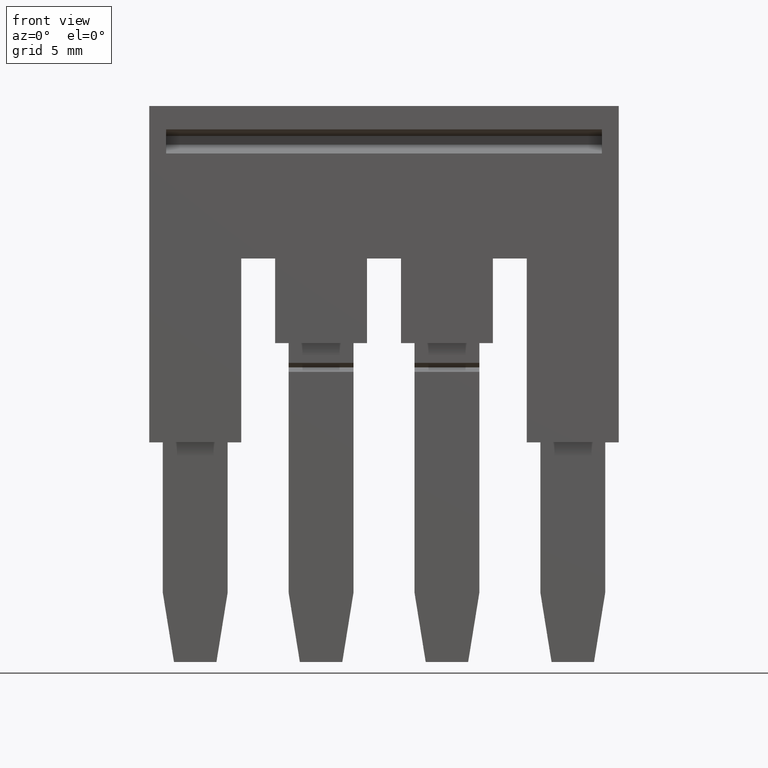
[diagram: clean part render]
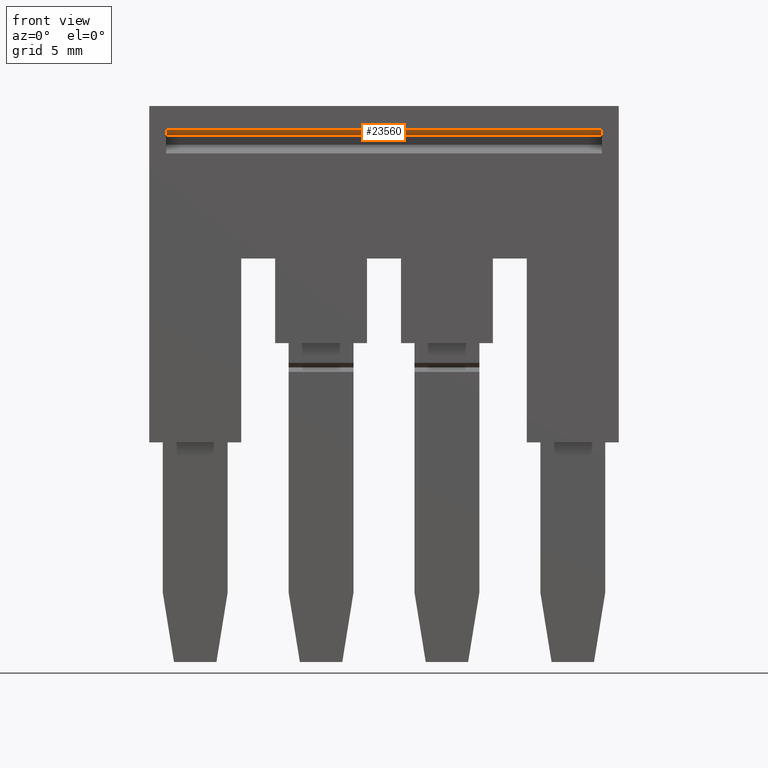
[diagram: same view with one face highlighted and labeled with its STEP entity id]
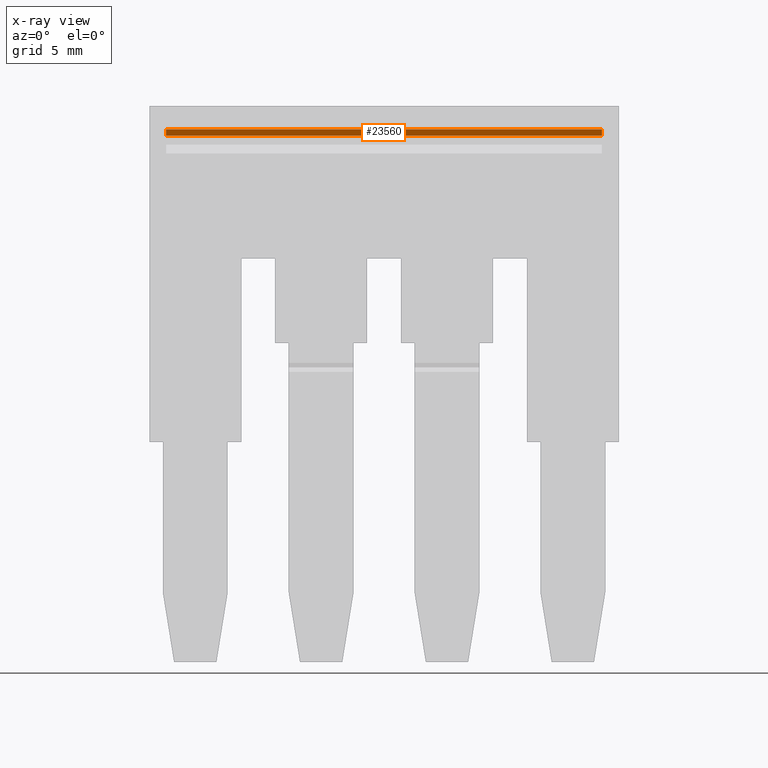
[diagram: x-ray of the same camera — body ghosted, the highlighted face saturated]
A machine part, front view. The second image highlights one B-rep face of the part: STEP entity #23560.
The next image is the same camera in x-ray: the body ghosted, the highlighted face saturated — about 0% of this face is hidden behind the body in this view.
In plain terms, the highlighted planar face has unit normal (0, 0.2588, 0.9659).
Its self-contained STEP definition (entity closure, byte-faithful):
#200=CARTESIAN_POINT('',(5.60716722168537,-10.8410254037807,
39.6599999999988));
#210=VERTEX_POINT('',#200);
#240=CARTESIAN_POINT('',(5.60716722168537,-10.8410254037807,0.));
#250=DIRECTION('',(0.,0.,-1.));
#260=VECTOR('',#250,1.);
#270=LINE('',#240,#260);
#280=CARTESIAN_POINT('',(5.60716722168537,-10.8410254037807,
57.6599999999988));
#290=VERTEX_POINT('',#280);
#300=EDGE_CURVE('',#290,#210,#270,.T.);
#23010=CARTESIAN_POINT('',(5.60716722168538,-10.8410254037807,
57.6599999999988));
#23020=DIRECTION('',(-0.965925826289069,-0.258819045102519,0.));
#23030=VECTOR('',#23020,1.);
#23040=LINE('',#23010,#23030);
#23050=CARTESIAN_POINT('',(4.60716722168536,-11.1089745962118,
57.6599999999988));
#23060=VERTEX_POINT('',#23050);
#23070=EDGE_CURVE('',#290,#23060,#23040,.T.);
#23330=CARTESIAN_POINT('',(5.60716722168538,-10.8410254037807,
57.6599999999988));
#23340=DIRECTION('',(-0.258819045102519,0.965925826289069,0.));
#23350=DIRECTION('',(-0.965925826289069,-0.258819045102519,0.));
#23360=AXIS2_PLACEMENT_3D('',#23330,#23340,#23350);
#23370=PLANE('',#23360);
#23380=ORIENTED_EDGE('',*,*,#23070,.T.);
#23390=ORIENTED_EDGE('',*,*,#300,.F.);
#23400=CARTESIAN_POINT('',(0.,-12.3434613326576,39.6599999999988));
#23410=DIRECTION('',(-0.965925826289069,-0.258819045102519,0.));
#23420=VECTOR('',#23410,1.);
#23430=LINE('',#23400,#23420);
#23440=CARTESIAN_POINT('',(4.60716722168536,-11.1089745962118,
39.6599999999988));
#23450=VERTEX_POINT('',#23440);
#23460=EDGE_CURVE('',#210,#23450,#23430,.T.);
#23470=ORIENTED_EDGE('',*,*,#23460,.F.);
#23480=CARTESIAN_POINT('',(4.60716722168537,-11.1089745962118,0.));
#23490=DIRECTION('',(0.,0.,-1.));
#23500=VECTOR('',#23490,1.);
#23510=LINE('',#23480,#23500);
#23520=EDGE_CURVE('',#23060,#23450,#23510,.T.);
#23530=ORIENTED_EDGE('',*,*,#23520,.T.);
#23540=EDGE_LOOP('',(#23530,#23470,#23390,#23380));
#23550=FACE_OUTER_BOUND('',#23540,.T.);
#23560=ADVANCED_FACE('',(#23550),#23370,.F.);